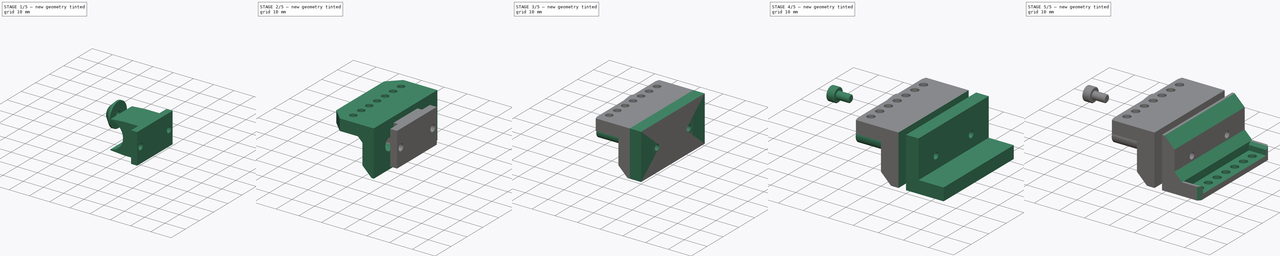
[diagram: build sequence overview — one tinted view per stage of 5, left to right]
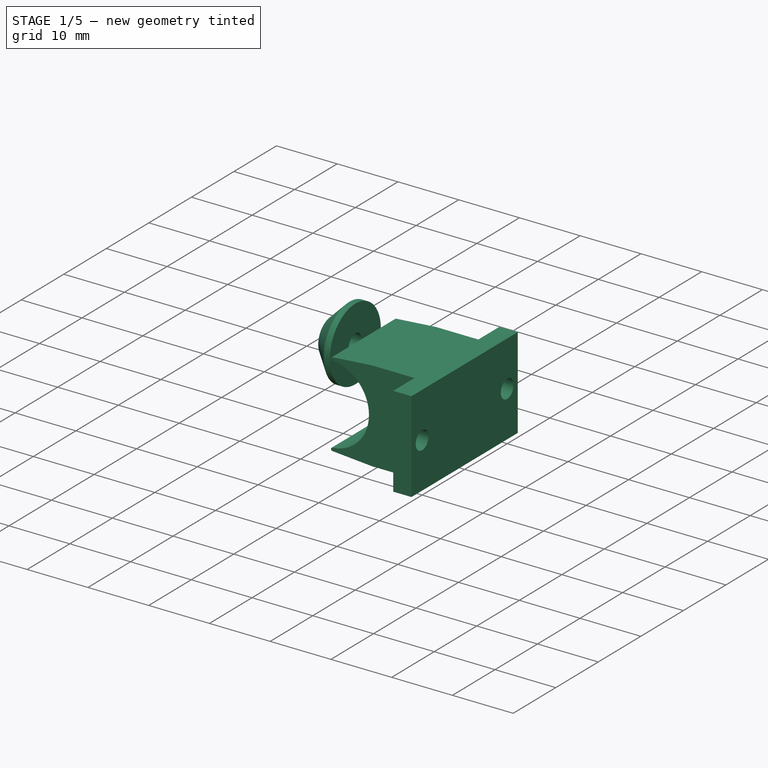
[diagram: stage 1 of 5 — iso view after this stage's code; geometry added in this stage tinted green]
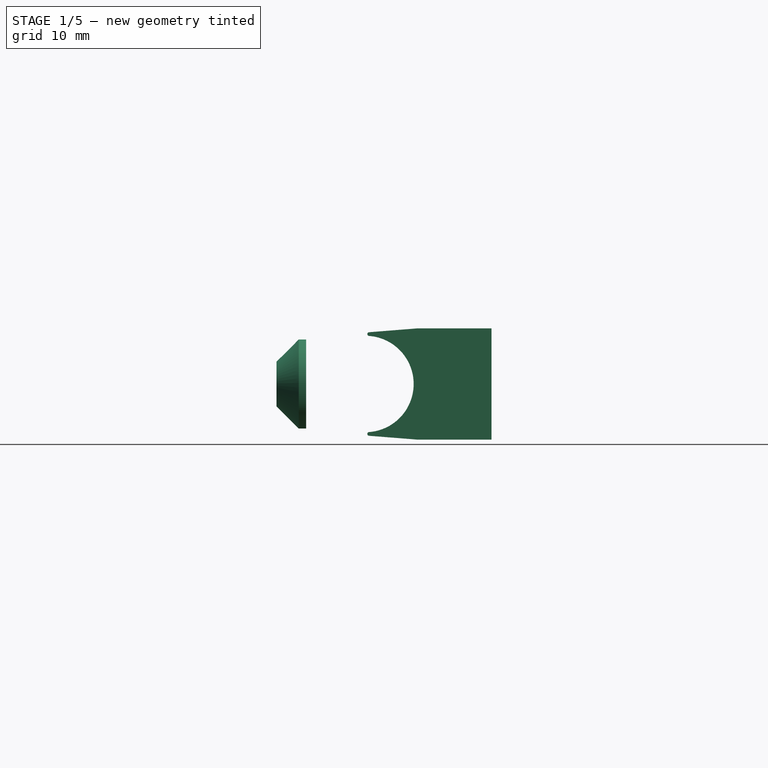
[diagram: stage 1 of 5 — front view after this stage's code; geometry added in this stage tinted green]
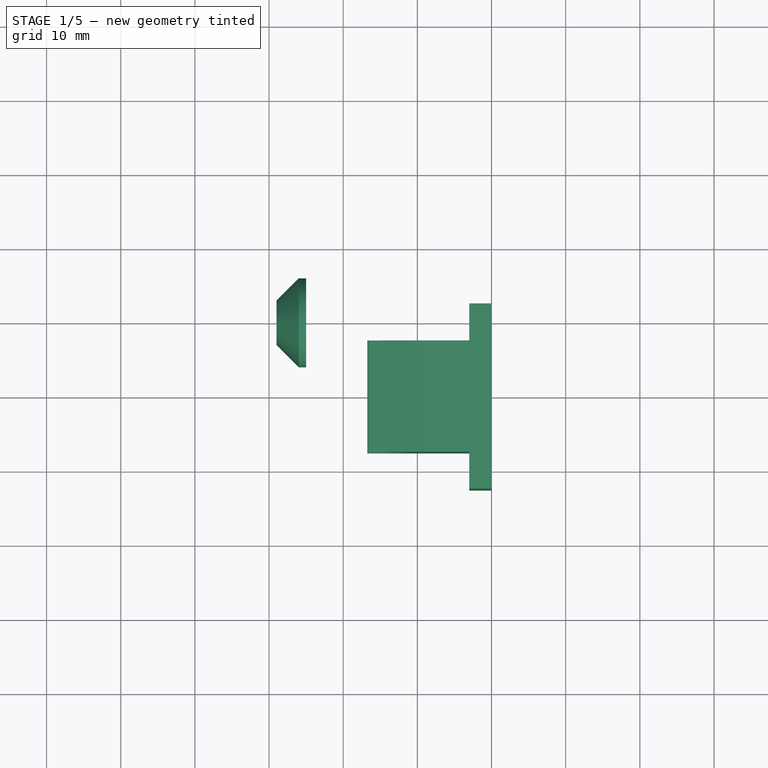
[diagram: stage 1 of 5 — top view after this stage's code; geometry added in this stage tinted green]
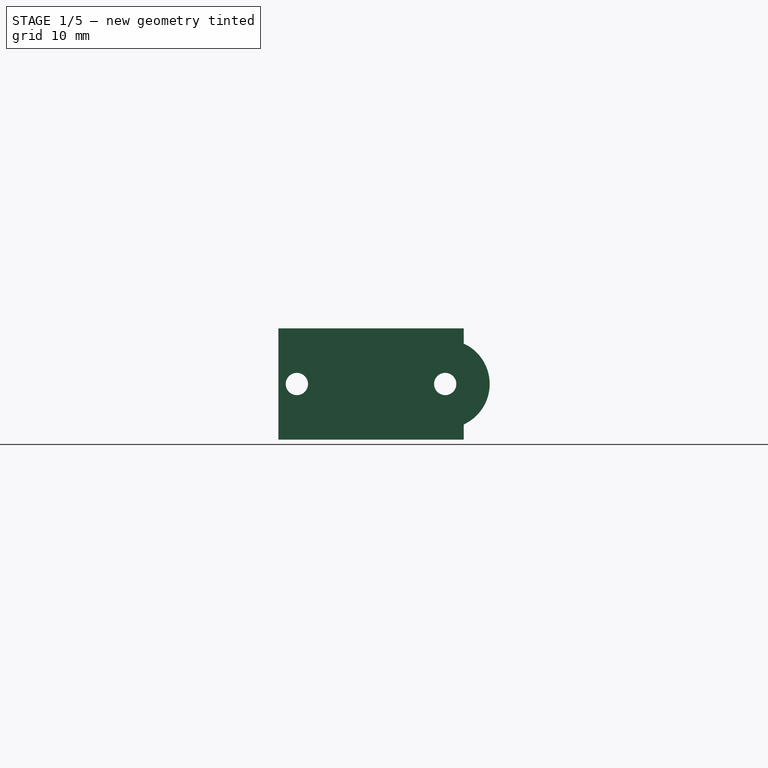
[diagram: stage 1 of 5 — right view after this stage's code; geometry added in this stage tinted green]
FCSTD DOCUMENT  (FreeCAD 1.0R39109 (Git))
Label: Field Probe Clamp
License: All rights reserved
LicenseURL: https://en.wikipedia.org/wiki/All_rights_reserved
objects: Sketcher::SketchObject×21, PartDesign::Pocket×13, PartDesign::Pad×12, PartDesign::Chamfer×8, PartDesign::Body×5, PartDesign::ShapeBinder×4, PartDesign::Plane×4, Part::FeaturePython×1, App::VarSet×1
note: 155 computed .brp shape members not serialized (recipe doc carries the construction recipe); baked Part::Feature solids carry a one-line shape summary decoded from their .brp

FEATURE [PartDesign::ShapeBinder] CopyChamfer002
  Placement = pos=(0,0,0) rot=(1,0,0;1.5708rad)
  TraceSupport = false
FEATURE [PartDesign::Plane] DatumPlane
  AttachmentSupport = -> [CopyChamfer002]
  Length = 60.7238
  MapMode = 5
  Placement = pos=(0,0,0) rot=(0.707107,0,-0.707107;3.14159rad)
  ResizeMode = 0
  Width = 68.2238
FEATURE [Sketcher::SketchObject] Sketch003
  ArcFitTolerance = 1e-06
  AttachmentSupport = -> [DatumPlane]
  ExternalGeometry = -> [CopyChamfer002]
  FullyConstrained = true
  MakeInternals = false
  MapMode = 5
  Placement = pos=(0,0,0) rot=(0.707107,0,-0.707107;3.14159rad)
  sketch-geometry (9):
    g0: Circle CenterX=-10 CenterY=30 CenterZ=0 NormalX=0 NormalY=0 NormalZ=1 AngleXU=0 Radius=1.5
    g1: Circle CenterX=-10 CenterY=10 CenterZ=0 NormalX=0 NormalY=0 NormalZ=1 AngleXU=0 Radius=1.5
    g2: LineSegment [constr] StartX=-10 StartY=30 StartZ=0 EndX=-10 EndY=10 EndZ=0
    g3: GeomPoint [constr] X=-10 Y=20 Z=0
    g4: LineSegment StartX=-12.5 StartY=7.5 StartZ=0 EndX=-7.5 EndY=7.5 EndZ=0
    g5: LineSegment StartX=-7.5 StartY=7.5 StartZ=0 EndX=-7.5 EndY=32.5 EndZ=0
    g6: LineSegment StartX=-7.5 StartY=32.5 StartZ=0 EndX=-12.5 EndY=32.5 EndZ=0
    g7: LineSegment StartX=-12.5 StartY=32.5 StartZ=0 EndX=-12.5 EndY=7.5 EndZ=0
    g8: GeomPoint [constr] X=-10 Y=20 Z=0
  constraints (19):
    c: Diameter(g0) = 3
    c: Coincident(g0,g-4)
    c: Diameter(g1) = 3
    c: Coincident(g1,g-3)
    c: Coincident(g2,g0)
    c: Coincident(g2,g1)
    c: Symmetric(g2,g2,g3)
    c: Coincident(g4,g5)
    c: Coincident(g5,g6)
    c: Coincident(g6,g7)
    c: Coincident(g7,g4)
    c: Horizontal(g4)
    c: Horizontal(g6)
    c: Vertical(g5)
    c: Vertical(g7)
    c: Symmetric(g6,g4,g8)
    c: Distance(g5,g7) = 5
    c: Distance(g4,g6) = 25
    c: Coincident(g8,g3)
FEATURE [PartDesign::Pad] Pad001
  Direction = (-1,0,-2e-16)
  Length = 10
  Length2 = 10
  Placement = pos=(0,0,0) rot=(0.707107,0,-0.707107;3.14159rad)
  Profile = -> Sketch003
  ReferenceAxis = -> Sketch003 [N_Axis]
  Refine = true
  Suppressed = false
  Type = 0
FEATURE [Sketcher::SketchObject] Sketch004
  ArcFitTolerance = 1e-06
  AttachmentSupport = -> [Pad001]
  ExternalGeometry = -> [Pad001]
  FullyConstrained = true
  MakeInternals = false
  MapMode = 5
  Placement = pos=(-10,9e-16,0) rot=(0.707107,0,-0.707107;3.14159rad)
  sketch-geometry (8):
    g0: LineSegment StartX=-12.5 StartY=32.5 StartZ=0 EndX=-12.5 EndY=27.5 EndZ=0
    g1: LineSegment StartX=-12.5 StartY=27.5 StartZ=0 EndX=-7.5 EndY=27.5 EndZ=0
    g2: LineSegment StartX=-7.5 StartY=27.5 StartZ=0 EndX=-7.5 EndY=32.5 EndZ=0
    g3: LineSegment StartX=-7.5 StartY=32.5 StartZ=0 EndX=-12.5 EndY=32.5 EndZ=0
    g4: LineSegment StartX=-12.5 StartY=7.5 StartZ=0 EndX=-7.5 EndY=7.5 EndZ=0
    g5: LineSegment StartX=-7.5 StartY=7.5 StartZ=0 EndX=-7.5 EndY=12.5 EndZ=0
    g6: LineSegment StartX=-7.5 StartY=12.5 StartZ=0 EndX=-12.5 EndY=12.5 EndZ=0
    g7: LineSegment StartX=-12.5 StartY=12.5 StartZ=0 EndX=-12.5 EndY=7.5 EndZ=0
  constraints (22):
    c: Coincident(g0,g1)
    c: Coincident(g1,g2)
    c: Coincident(g2,g3)
    c: Coincident(g3,g0)
    c: Vertical(g0)
    c: Vertical(g2)
    c: Horizontal(g1)
    c: Horizontal(g3)
    c: Distance(g0,g2) = 5
    c: Distance(g1,g3) = 5
    c: Coincident(g0,g-3)
    c: Coincident(g4,g5)
    c: Coincident(g5,g6)
    c: Coincident(g6,g7)
    c: Coincident(g7,g4)
    c: Horizontal(g4)
    c: Horizontal(g6)
    c: Vertical(g5)
    c: Vertical(g7)
    c: Distance(g5,g7) = 5
    c: Distance(g4,g6) = 5
    c: Coincident(g4,g-4)
FEATURE [PartDesign::Pocket] Pocket002
  BaseFeature = -> Pad001
  Direction = (1,0,2e-16)
  Length = 7
  Length2 = 5
  Placement = pos=(0,0,0) rot=(0.707107,0,-0.707107;3.14159rad)
  Profile = -> Sketch004
  ReferenceAxis = -> Sketch004 [N_Axis]
  Refine = true
  Suppressed = false
  Type = 0
FEATURE [PartDesign::ShapeBinder] CopyPocket009
  Placement = pos=(-4.4e-15,0,20) rot=(0.707107,0,-0.707107;3.14159rad)
  TraceSupport = false
FEATURE [PartDesign::Plane] DatumPlane003
  AttachmentSupport = -> [CopyPocket009]
  Length = 60
  MapMode = 5
  Placement = pos=(-25,-2.2e-15,20) rot=(0.707107,0,-0.707107;3.14159rad)
  ResizeMode = 0
  Width = 60
FEATURE [Sketcher::SketchObject] Sketch015
  ArcFitTolerance = 1e-06
  AttachmentSupport = -> [DatumPlane003]
  ExternalGeometry = -> [CopyPocket009]
  FullyConstrained = true
  MakeInternals = false
  MapMode = 5
  Placement = pos=(-25,-2.2e-15,20) rot=(0.707107,0,-0.707107;3.14159rad)
  sketch-geometry (2):
    g0: Circle CenterX=10 CenterY=10 CenterZ=0 NormalX=0 NormalY=0 NormalZ=1 AngleXU=0 Radius=1.55
    g1: Circle CenterX=10 CenterY=10 CenterZ=0 NormalX=0 NormalY=0 NormalZ=1 AngleXU=0 Radius=6
  constraints (4):
    c: Diameter(g0) = 3.1
    c: Coincident(g0,g-4)
    c: Diameter(g1) = 12
    c: Coincident(g1,g0)
FEATURE [PartDesign::Pad] Pad007
  Direction = (-1,0,-2e-16)
  Length = 4
  Length2 = 10
  Placement = pos=(-25,-2.2e-15,20) rot=(0.707107,0,-0.707107;3.14159rad)
  Profile = -> Sketch015
  ReferenceAxis = -> Sketch015 [N_Axis]
  Refine = true
  Suppressed = false
  Type = 0
FEATURE [PartDesign::Chamfer] Chamfer012
  Angle = 45
  Base = -> Pad007 [Edge3]
  BaseFeature = -> Pad007
  ChamferType = 0
  FlipDirection = false
  Placement = pos=(-25,-2.2e-15,20) rot=(0.707107,0,-0.707107;3.14159rad)
  Refine = true
  Size = 3
  Size2 = 1
  SupportTransform = false
  Suppressed = false
  UseAllEdges = false
FEATURE [PartDesign::Body] Body004  label="Spring Retainer"
  AllowCompound = false
  Group = -> [DatumPlane003,CopyPocket009,Sketch015,Pad007,Chamfer012]
  Origin = -> Origin004
  Placement = pos=(-24.5,0,0) rot=(0,0,1;0rad)
  Tip = -> Chamfer012
FEATURE [App::VarSet] VarSet  label="Clamp Screw Variable"
  ClampScrewHoleDia = 2.6
FEATURE [PartDesign::Body] Body003  label="Clamp Body"
  AllowCompound = false
  Group = -> [DatumPlane002,CopyPocket003,Sketch008,Pad004,Sketch009,Pad005,Sketch010,Pocket004,Sketch011,Pocket005,Chamfer007,Chamfer008,Chamfer009,Sketch012,Pocket007,Sketch018,Pocket011,Sketch019,Pocket012,VarSet]
  Origin = -> Origin003
  Placement = pos=(-21,0,0) rot=(0,0,1;0rad)
  Tip = -> Pocket012
FEATURE [PartDesign::Pad] Pad009
  BaseFeature = -> Pocket002
  Direction = (2e-16,2e-16,-1)
  Length = 5
  Length2 = 10
  Placement = pos=(0,0,0) rot=(0.707107,0,-0.707107;3.14159rad)
  Profile = -> Pocket002 [Face3]
  Refine = true
  Suppressed = false
  Type = 0
FEATURE [PartDesign::Pad] Pad010
  BaseFeature = -> Pad009
  Direction = (-2e-16,-3e-16,1)
  Length = 5
  Length2 = 10
  Placement = pos=(0,0,0) rot=(0.707107,0,-0.707107;3.14159rad)
  Profile = -> Pad009 [Face3]
  Refine = true
  Suppressed = false
  Type = 0
FEATURE [Sketcher::SketchObject] Sketch020
  ArcFitTolerance = 1e-06
  AttachmentSupport = -> [Pad010]
  ExternalGeometry = -> [Pad010]
  FullyConstrained = true
  MakeInternals = false
  MapMode = 5
  Placement = pos=(0,-12.5,-5.1e-15) rot=(0.57735,-0.57735,-0.57735;4.18879rad)
  sketch-geometry (10):
    g0: GeomPoint X=-10 Y=10 Z=0
    g1: LineSegment [constr] StartX=-10 StartY=10 StartZ=0 EndX=-10 EndY=17 EndZ=0
    g2: ArcOfCircle CenterX=-10 CenterY=17 CenterZ=0 NormalX=0 NormalY=0 NormalZ=1 AngleXU=0 Radius=6.5 StartAngle=3.21573 EndAngle=6.20904
    g3: LineSegment StartX=-2.5 StartY=10 StartZ=0 EndX=-3.01933 EndY=16.5199 EndZ=0
    g4: LineSegment StartX=-17.5 StartY=10 StartZ=0 EndX=-16.9807 EndY=16.5199 EndZ=0
    g5: LineSegment StartX=-2.5 StartY=10 StartZ=0 EndX=-10 EndY=10 EndZ=0
    g6: LineSegment StartX=-17.5 StartY=10 StartZ=0 EndX=-10 EndY=10 EndZ=0
    g7: ArcOfCircle CenterX=-3.26854 CenterY=16.5 CenterZ=0 NormalX=0 NormalY=0 NormalZ=1 AngleXU=0 Radius=0.25 StartAngle=0.0794864 EndAngle=3.06745
    g8: ArcOfCircle CenterX=-16.7315 CenterY=16.5 CenterZ=0 NormalX=0 NormalY=0 NormalZ=1 AngleXU=0 Radius=0.25 StartAngle=0.074142 EndAngle=3.06211
    g9: GeomPoint X=-10 Y=16.5 Z=0
  constraints (22):
    c: Symmetric(g-3,g-3,g0)
    c: Distance(g1) = 7
    c: Coincident(g1,g0)
    c: Vertical(g1)
    c: Diameter(g2) = 13
    c: Coincident(g2,g1)
    c: Coincident(g3,g-3)
    c: Coincident(g4,g-3)
    c: Coincident(g5,g3)
    c: Coincident(g5,g0)
    c: Coincident(g6,g4)
    c: Coincident(g6,g0)
    c: Tangent(g2,g7) = 1.5708
    c: Tangent(g3,g7) = -1.5708
    c: Tangent(g4,g8) = 1.5708
    c: Tangent(g2,g8) = 1.5708
    c: Distance(g8,g2) = 0.25
    c: PointOnObject(g9,g1)
    c: DistanceY(g9,g1) = 0.5
    c: Horizontal(g8,g9)
    c: Horizontal(g7,g9)
    c: Distance(g7,g2) = 0.25
FEATURE [PartDesign::Pad] Pad011
  BaseFeature = -> Pad010
  Direction = (0,1,0)
  Length = 10
  Length2 = 10
  Placement = pos=(0,0,0) rot=(0.707107,0,-0.707107;3.14159rad)
  Profile = -> Sketch020
  ReferenceAxis = -> Sketch020 [N_Axis]
  Refine = true
  Suppressed = false
  Type = 3
  UpToFace = -> Pad010 [Face9]
FEATURE [PartDesign::Body] Body001  label="Extrusion Lug"
  AllowCompound = false
  Group = -> [DatumPlane,CopyChamfer002,Sketch003,Pad001,Sketch004,Pocket002,Pad009,Pad010,Sketch020,Pad011]
  Origin = -> Origin001
  Tip = -> Pad011
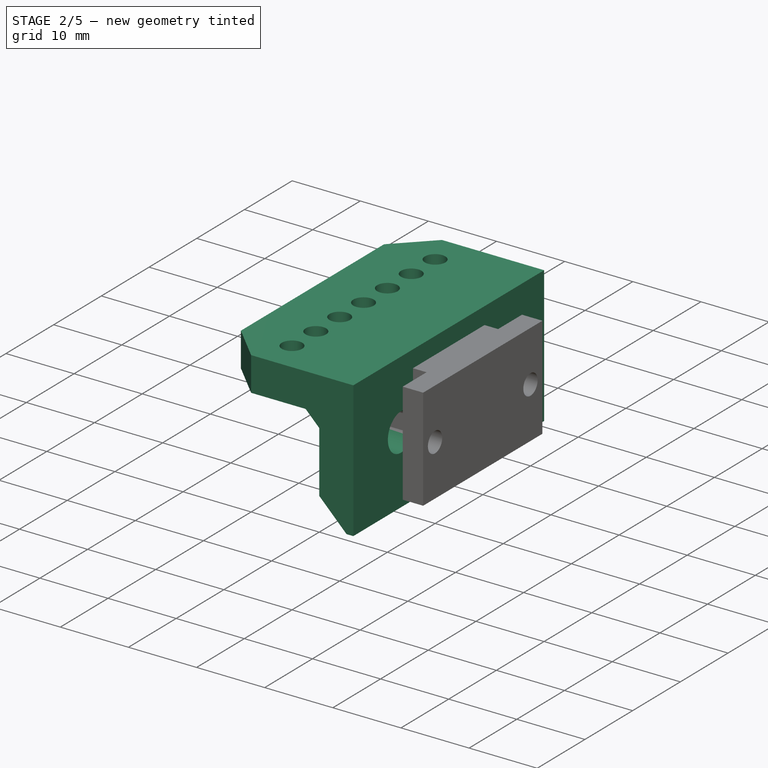
[diagram: stage 2 of 5 — iso view after this stage's code; geometry added in this stage tinted green]
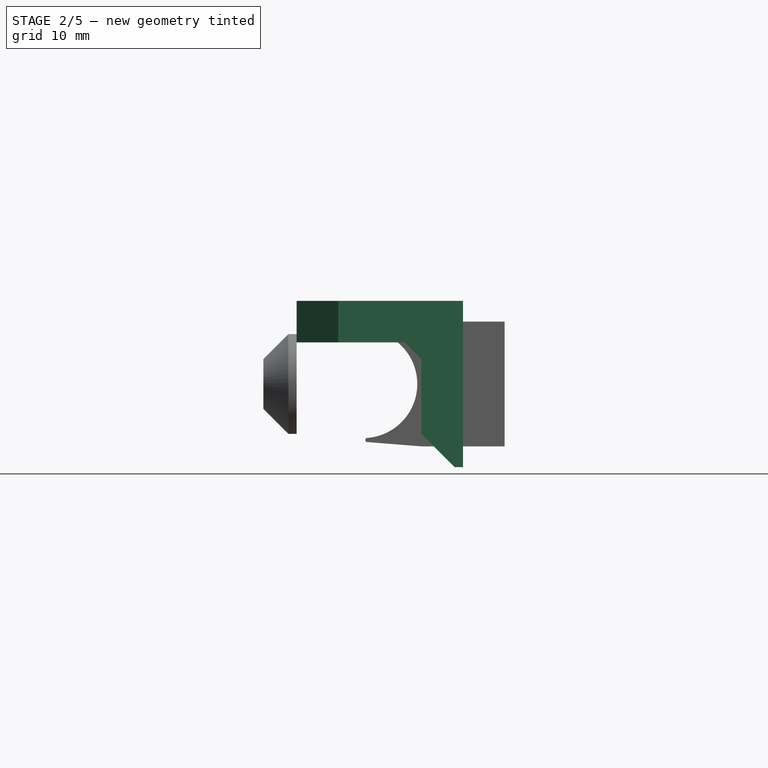
[diagram: stage 2 of 5 — front view after this stage's code; geometry added in this stage tinted green]
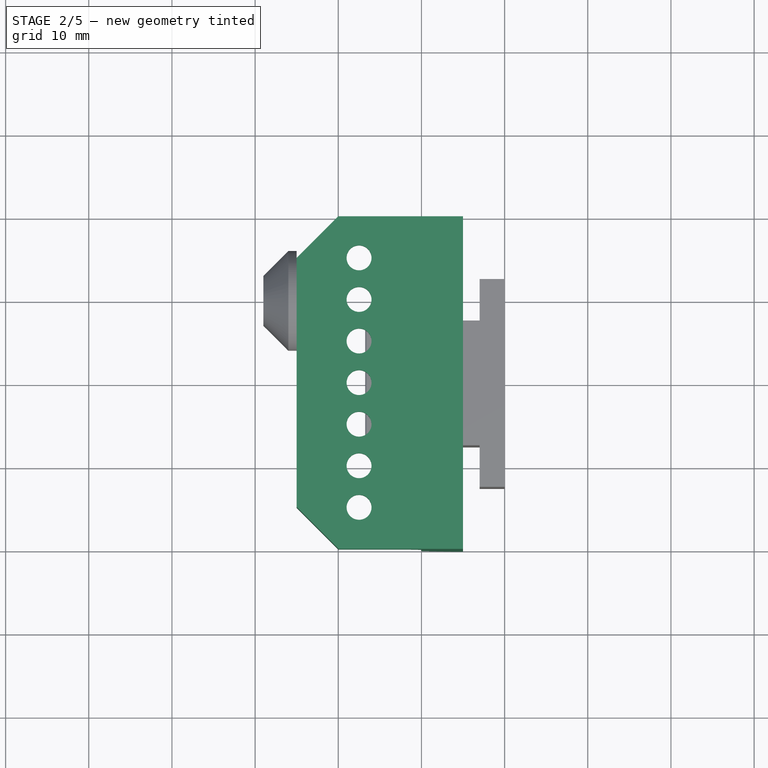
[diagram: stage 2 of 5 — top view after this stage's code; geometry added in this stage tinted green]
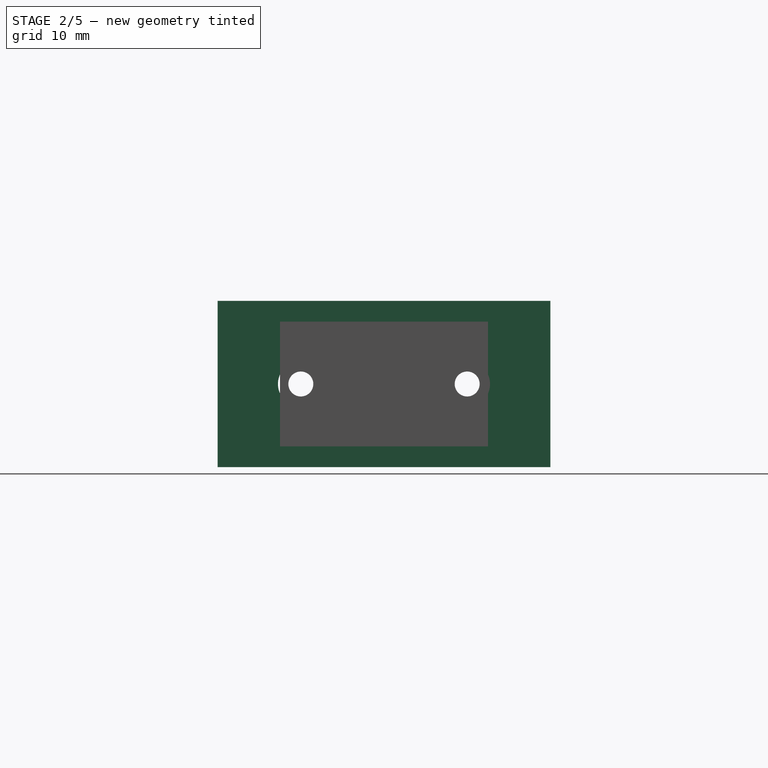
[diagram: stage 2 of 5 — right view after this stage's code; geometry added in this stage tinted green]
FEATURE [PartDesign::ShapeBinder] CopyPocket003
  Placement = pos=(-4.4e-15,0,20) rot=(0.707107,0,-0.707107;3.14159rad)
  TraceSupport = false
FEATURE [PartDesign::Plane] DatumPlane002
  AttachmentSupport = -> [CopyPocket003]
  Length = 61.4018
  MapMode = 5
  Placement = pos=(-5,-4e-16,20) rot=(0.707107,0,-0.707107;3.14159rad)
  ResizeMode = 0
  Width = 76.4018
FEATURE [Sketcher::SketchObject] Sketch008
  ArcFitTolerance = 1e-06
  AttachmentSupport = -> [DatumPlane002]
  ExternalGeometry = -> [CopyPocket003]
  FullyConstrained = true
  MakeInternals = false
  MapMode = 5
  Placement = pos=(-5,-4e-16,20) rot=(0.707107,0,-0.707107;3.14159rad)
  expr: Constraints[14] = <<Clamp Screw Variable>>.ClampScrewHoleDia
  sketch-geometry (7):
    g0: LineSegment StartX=0 StartY=40 StartZ=0 EndX=0 EndY=0 EndZ=0
    g1: LineSegment StartX=0 StartY=0 StartZ=0 EndX=20 EndY=0 EndZ=0
    g2: LineSegment StartX=20 StartY=0 StartZ=0 EndX=20 EndY=40 EndZ=0
    g3: LineSegment StartX=20 StartY=40 StartZ=0 EndX=0 EndY=40 EndZ=0
    g4: Circle CenterX=10 CenterY=30 CenterZ=0 NormalX=0 NormalY=0 NormalZ=1 AngleXU=0 Radius=2.75
    g5: Circle CenterX=10 CenterY=10 CenterZ=0 NormalX=0 NormalY=0 NormalZ=1 AngleXU=0 Radius=2.75
    g6: Circle CenterX=10 CenterY=20 CenterZ=0 NormalX=0 NormalY=0 NormalZ=1 AngleXU=0 Radius=1.3
  constraints (16):
    c: Coincident(g0,g1)
    c: Coincident(g1,g2)
    c: Coincident(g2,g3)
    c: Coincident(g3,g0)
    c: Vertical(g0)
    c: Vertical(g2)
    c: Horizontal(g1)
    c: Horizontal(g3)
    c: Coincident(g0,g-7)
    c: Coincident(g1,g-6)
    c: Diameter(g4) = 5.5
    c: Coincident(g4,g-3)
    c: Diameter(g5) = 5.5
    c: Coincident(g5,g-5)
    c: Diameter(g6) = 2.6
    c: Coincident(g6,g-4)
FEATURE [PartDesign::Pad] Pad004
  Direction = (-1,0,-2e-16)
  Length = 5
  Length2 = 10
  Placement = pos=(-5,-4e-16,20) rot=(0.707107,0,-0.707107;3.14159rad)
  Profile = -> Sketch008
  ReferenceAxis = -> Sketch008 [N_Axis]
  Refine = true
  Suppressed = false
  Type = 0
FEATURE [Sketcher::SketchObject] Sketch009
  ArcFitTolerance = 1e-06
  AttachmentSupport = -> [Pad004]
  ExternalGeometry = -> [Pad004]
  FullyConstrained = true
  MakeInternals = false
  MapMode = 5
  Placement = pos=(-10,-4e-16,20) rot=(0.707107,0,-0.707107;3.14159rad)
  sketch-geometry (4):
    g0: LineSegment StartX=0 StartY=40 StartZ=0 EndX=0 EndY=0 EndZ=0
    g1: LineSegment StartX=0 StartY=0 StartZ=0 EndX=5 EndY=0 EndZ=0
    g2: LineSegment StartX=5 StartY=0 StartZ=0 EndX=5 EndY=40 EndZ=0
    g3: LineSegment StartX=5 StartY=40 StartZ=0 EndX=0 EndY=40 EndZ=0
  constraints (11):
    c: Coincident(g0,g1)
    c: Coincident(g1,g2)
    c: Coincident(g2,g3)
    c: Coincident(g3,g0)
    c: Vertical(g0)
    c: Vertical(g2)
    c: Horizontal(g1)
    c: Horizontal(g3)
    c: Distance(g0,g2) = 5
    c: Coincident(g0,g-3)
    c: PointOnObject(g1,g-4)
FEATURE [PartDesign::Pad] Pad005
  BaseFeature = -> Pad004
  Direction = (-1,0,-2e-16)
  Length = 15
  Length2 = 10
  Placement = pos=(-5,-4e-16,20) rot=(0.707107,0,-0.707107;3.14159rad)
  Profile = -> Sketch009
  ReferenceAxis = -> Sketch009 [N_Axis]
  Refine = true
  Suppressed = false
  Type = 0
FEATURE [Sketcher::SketchObject] Sketch010
  ArcFitTolerance = 1e-06
  AttachmentSupport = -> [Pad005]
  ExternalGeometry = -> [Pad005]
  FullyConstrained = true
  MakeInternals = false
  MapMode = 5
  Placement = pos=(-5,0,15) rot=(0.707107,-0.707107,0;3.14159rad)
  sketch-geometry (15):
    g0: LineSegment [constr] StartX=0 StartY=12.5 StartZ=0 EndX=40 EndY=12.5 EndZ=0
    g1: GeomPoint [constr] X=20 Y=12.5 Z=0
    g2: LineSegment [constr] StartX=20 StartY=12.5 StartZ=0 EndX=25 EndY=12.5 EndZ=0
    g3: LineSegment [constr] StartX=25 StartY=12.5 StartZ=0 EndX=30 EndY=12.5 EndZ=0
    g4: LineSegment [constr] StartX=30 StartY=12.5 StartZ=0 EndX=35 EndY=12.5 EndZ=0
    g5: LineSegment [constr] StartX=20 StartY=12.5 StartZ=0 EndX=15 EndY=12.5 EndZ=0
    g6: LineSegment [constr] StartX=15 StartY=12.5 StartZ=0 EndX=10 EndY=12.5 EndZ=0
    g7: LineSegment [constr] StartX=10 StartY=12.5 StartZ=0 EndX=5 EndY=12.5 EndZ=0
    g8: Circle CenterX=5 CenterY=12.5 CenterZ=0 NormalX=0 NormalY=0 NormalZ=1 AngleXU=0 Radius=1.5
    g9: Circle CenterX=10 CenterY=12.5 CenterZ=0 NormalX=0 NormalY=0 NormalZ=1 AngleXU=0 Radius=1.5
    g10: Circle CenterX=15 CenterY=12.5 CenterZ=0 NormalX=0 NormalY=0 NormalZ=1 AngleXU=0 Radius=1.5
    g11: Circle CenterX=20 CenterY=12.5 CenterZ=0 NormalX=0 NormalY=0 NormalZ=1 AngleXU=0 Radius=1.5
    g12: Circle CenterX=25 CenterY=12.5 CenterZ=0 NormalX=0 NormalY=0 NormalZ=1 AngleXU=0 Radius=1.5
    g13: Circle CenterX=30 CenterY=12.5 CenterZ=0 NormalX=0 NormalY=0 NormalZ=1 AngleXU=0 Radius=1.5
    g14: Circle CenterX=35 CenterY=12.5 CenterZ=0 NormalX=0 NormalY=0 NormalZ=1 AngleXU=0 Radius=1.5
  constraints (35):
    c: Symmetric(g-4,g-4,g0)
    c: Symmetric(g-3,g-3,g0)
    c: Symmetric(g0,g0,g1)
    c: Distance(g2) = 5
    c: Coincident(g2,g1)
    c: PointOnObject(g2,g0)
    c: Distance(g3) = 5
    c: Coincident(g3,g2)
    c: PointOnObject(g3,g0)
    c: Distance(g4) = 5
    c: Coincident(g4,g3)
    c: PointOnObject(g4,g0)
    c: Distance(g5) = 5
    c: Coincident(g5,g1)
    c: PointOnObject(g5,g0)
    c: Distance(g6) = 5
    c: Coincident(g6,g5)
    c: PointOnObject(g6,g0)
    c: Distance(g7) = 5
    c: Coincident(g7,g6)
    c: PointOnObject(g7,g0)
    c: Diameter(g8) = 3
    c: Coincident(g8,g7)
    c: Diameter(g9) = 3
    c: Coincident(g9,g6)
    c: Diameter(g10) = 3
    c: Coincident(g10,g5)
    c: Diameter(g11) = 3
    c: Coincident(g11,g1)
    c: Diameter(g12) = 3
    c: Coincident(g12,g2)
    c: Diameter(g13) = 3
    c: Coincident(g13,g3)
    c: Diameter(g14) = 3
    c: Coincident(g14,g4)
FEATURE [PartDesign::Pocket] Pocket004
  BaseFeature = -> Pad005
  Direction = (0,0,1)
  Length = 5
  Length2 = 5
  Placement = pos=(-5,-4e-16,20) rot=(0.707107,0,-0.707107;3.14159rad)
  Profile = -> Sketch010
  ReferenceAxis = -> Sketch010 [N_Axis]
  Refine = true
  Suppressed = false
  Type = 1
FEATURE [Sketcher::SketchObject] Sketch011
  ArcFitTolerance = 1e-06
  AttachmentSupport = -> [Pocket004]
  ExternalGeometry = -> [Pocket004]
  FullyConstrained = true
  MakeInternals = false
  MapMode = 5
  Placement = pos=(-5,0,15) rot=(0.707107,-0.707107,0;3.14159rad)
  sketch-geometry (5):
    g0: LineSegment StartX=1.5 StartY=9.5 StartZ=0 EndX=38.5 EndY=9.5 EndZ=0
    g1: LineSegment StartX=38.5 StartY=9.5 StartZ=0 EndX=38.5 EndY=15.5 EndZ=0
    g2: LineSegment StartX=38.5 StartY=15.5 StartZ=0 EndX=1.5 EndY=15.5 EndZ=0
    g3: LineSegment StartX=1.5 StartY=15.5 StartZ=0 EndX=1.5 EndY=9.5 EndZ=0
    g4: GeomPoint [constr] X=20 Y=12.5 Z=0
  constraints (12):
    c: Coincident(g0,g1)
    c: Coincident(g1,g2)
    c: Coincident(g2,g3)
    c: Coincident(g3,g0)
    c: Horizontal(g0)
    c: Horizontal(g2)
    c: Vertical(g1)
    c: Vertical(g3)
    c: Symmetric(g2,g0,g4)
    c: Distance(g1,g3) = 37
    c: Distance(g0,g2) = 6
    c: Coincident(g4,g-3)
FEATURE [PartDesign::Pocket] Pocket005
  BaseFeature = -> Pocket004
  Direction = (0,0,1)
  Length = 3
  Length2 = 5
  Placement = pos=(-5,-4e-16,20) rot=(0.707107,0,-0.707107;3.14159rad)
  Profile = -> Sketch011
  ReferenceAxis = -> Sketch011 [N_Axis]
  Refine = true
  Suppressed = false
  Type = 0
FEATURE [PartDesign::Chamfer] Chamfer007
  Angle = 45
  Base = -> Pocket005 [Edge48]
  BaseFeature = -> Pocket005
  ChamferType = 0
  FlipDirection = false
  Placement = pos=(-5,-4e-16,20) rot=(0.707107,0,-0.707107;3.14159rad)
  Refine = true
  Size = 2
  Size2 = 1
  SupportTransform = false
  Suppressed = false
  UseAllEdges = false
FEATURE [PartDesign::Chamfer] Chamfer008
  Angle = 45
  Base = -> Chamfer007 [Edge9]
  BaseFeature = -> Chamfer007
  ChamferType = 0
  FlipDirection = false
  Placement = pos=(-5,-4e-16,20) rot=(0.707107,0,-0.707107;3.14159rad)
  Refine = true
  Size = 4
  Size2 = 1
  SupportTransform = false
  Suppressed = false
  UseAllEdges = false
FEATURE [PartDesign::Chamfer] Chamfer009
  Angle = 45
  Base = -> Chamfer008 [Edge7,Edge33]
  BaseFeature = -> Chamfer008
  ChamferType = 0
  FlipDirection = false
  Placement = pos=(-5,-4e-16,20) rot=(0.707107,0,-0.707107;3.14159rad)
  Refine = true
  Size = 5
  Size2 = 1
  SupportTransform = false
  Suppressed = false
  UseAllEdges = false
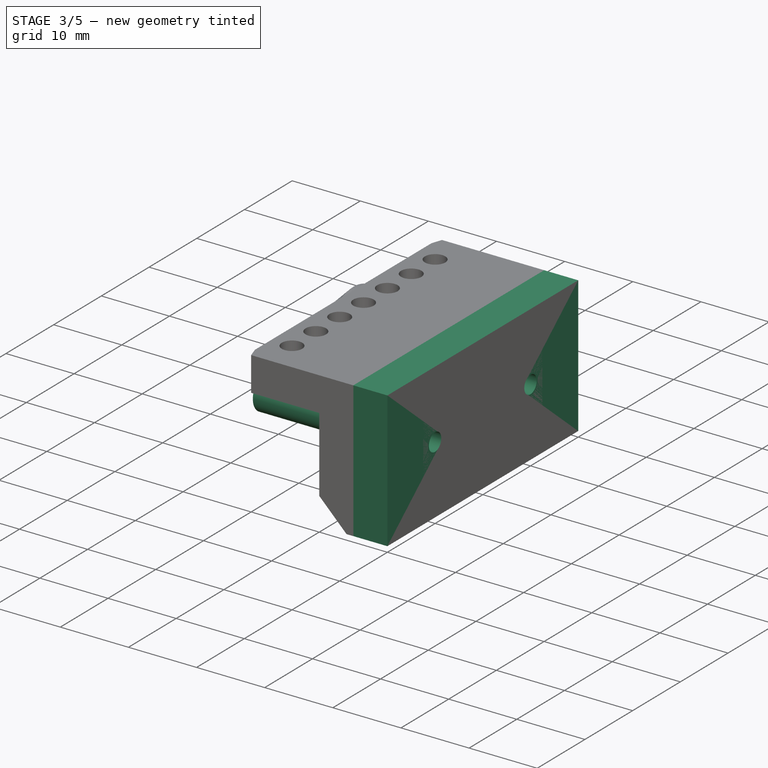
[diagram: stage 3 of 5 — iso view after this stage's code; geometry added in this stage tinted green]
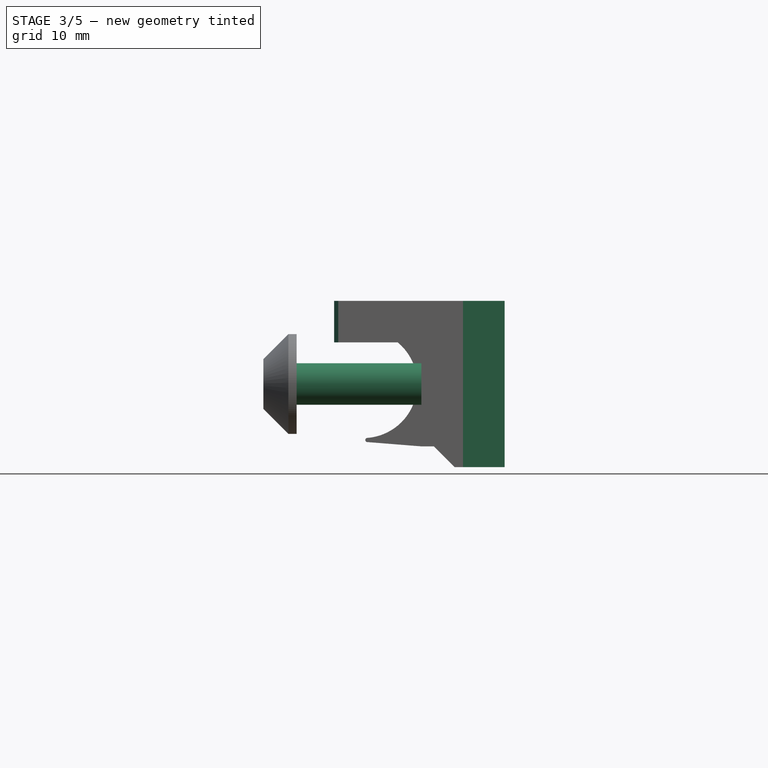
[diagram: stage 3 of 5 — front view after this stage's code; geometry added in this stage tinted green]
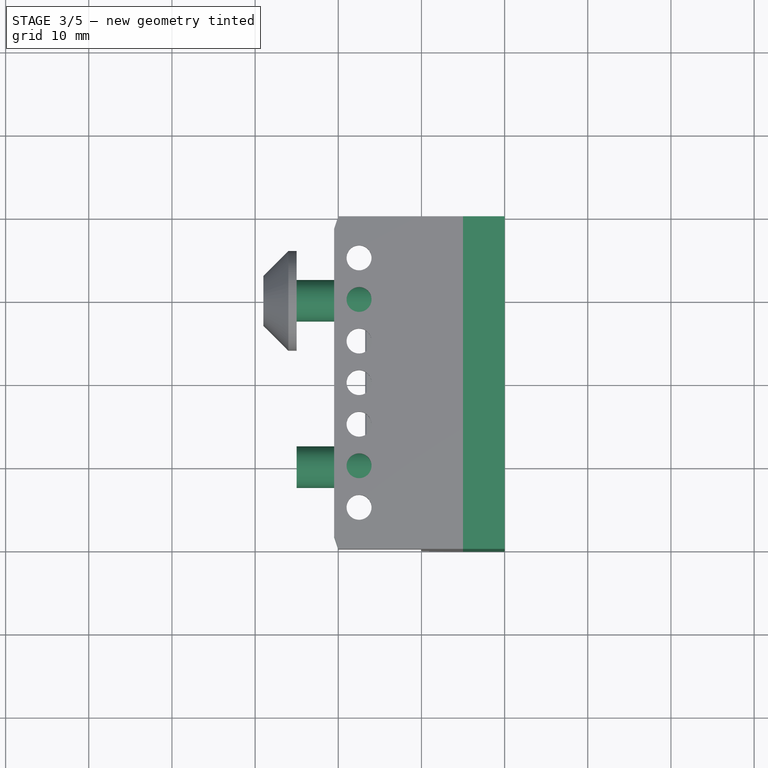
[diagram: stage 3 of 5 — top view after this stage's code; geometry added in this stage tinted green]
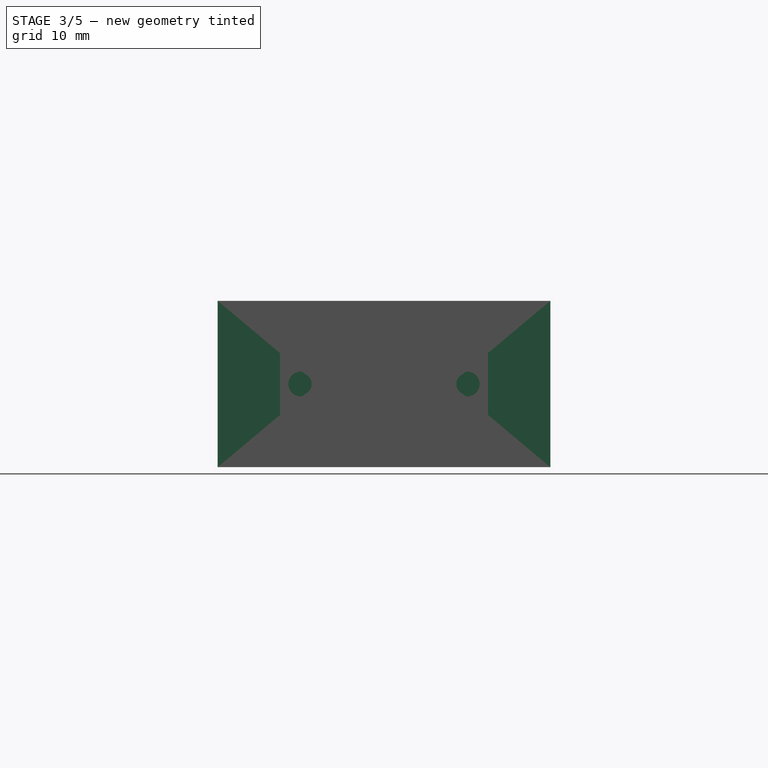
[diagram: stage 3 of 5 — right view after this stage's code; geometry added in this stage tinted green]
FEATURE [PartDesign::ShapeBinder] CopyChamfer003
  Placement = pos=(0,0,0) rot=(1,0,0;1.5708rad)
  TraceSupport = false
FEATURE [PartDesign::Plane] DatumPlane001
  AttachmentOffset = pos=(-20,0,0) rot=(0,0,1;0rad)
  AttachmentSupport = -> [CopyChamfer003]
  Length = 61.4018
  MapMode = 5
  Placement = pos=(-4.4e-15,0,20) rot=(0.707107,0,-0.707107;3.14159rad)
  ResizeMode = 0
  Width = 76.4018
FEATURE [Sketcher::SketchObject] Sketch005
  ArcFitTolerance = 1e-06
  AttachmentSupport = -> [DatumPlane001]
  ExternalGeometry = -> [CopyChamfer003]
  FullyConstrained = true
  MakeInternals = false
  MapMode = 5
  Placement = pos=(-4.4e-15,0,20) rot=(0.707107,0,-0.707107;3.14159rad)
  sketch-geometry (6):
    g0: LineSegment StartX=0 StartY=40 StartZ=0 EndX=0 EndY=0 EndZ=0
    g1: LineSegment StartX=0 StartY=0 StartZ=0 EndX=20 EndY=0 EndZ=0
    g2: LineSegment StartX=20 StartY=0 StartZ=0 EndX=20 EndY=40 EndZ=0
    g3: LineSegment StartX=20 StartY=40 StartZ=0 EndX=0 EndY=40 EndZ=0
    g4: Circle CenterX=10 CenterY=30 CenterZ=0 NormalX=0 NormalY=0 NormalZ=1 AngleXU=0 Radius=1.3
    g5: Circle CenterX=10 CenterY=10 CenterZ=0 NormalX=0 NormalY=0 NormalZ=1 AngleXU=0 Radius=1.3
  constraints (14):
    c: Coincident(g0,g1)
    c: Coincident(g1,g2)
    c: Coincident(g2,g3)
    c: Coincident(g3,g0)
    c: Vertical(g0)
    c: Vertical(g2)
    c: Horizontal(g1)
    c: Horizontal(g3)
    c: Coincident(g0,g-7)
    c: Coincident(g1,g-8)
    c: Coincident(g4,g-4)
    c: Equal(g4,g-4)
    c: Coincident(g5,g-5)
    c: Equal(g5,g-5)
FEATURE [PartDesign::Pad] Pad002
  Direction = (-1,0,-2e-16)
  Length = 5
  Length2 = 10
  Placement = pos=(-4.4e-15,0,20) rot=(0.707107,0,-0.707107;3.14159rad)
  Profile = -> Sketch005
  ReferenceAxis = -> Sketch005 [N_Axis]
  Refine = true
  Suppressed = false
  Type = 0
FEATURE [Sketcher::SketchObject] Sketch006
  ArcFitTolerance = 1e-06
  AttachmentSupport = -> [Pad002]
  ExternalGeometry = -> [Pad002]
  FullyConstrained = true
  MakeInternals = false
  MapMode = 5
  Placement = pos=(-5,0,20) rot=(0.707107,0,-0.707107;3.14159rad)
  sketch-geometry (2):
    g0: Circle CenterX=10 CenterY=30 CenterZ=0 NormalX=0 NormalY=0 NormalZ=1 AngleXU=0 Radius=2.5
    g1: Circle CenterX=10 CenterY=10 CenterZ=0 NormalX=0 NormalY=0 NormalZ=1 AngleXU=0 Radius=2.5
  constraints (4):
    c: Diameter(g0) = 5
    c: Coincident(g0,g-3)
    c: Diameter(g1) = 5
    c: Coincident(g1,g-4)
FEATURE [PartDesign::Pad] Pad003
  BaseFeature = -> Pad002
  Direction = (-1,0,-2e-16)
  Length = 20
  Length2 = 10
  Placement = pos=(-4.4e-15,0,20) rot=(0.707107,0,-0.707107;3.14159rad)
  Profile = -> Sketch006
  ReferenceAxis = -> Sketch006 [N_Axis]
  Refine = true
  Suppressed = false
  Type = 0
FEATURE [Sketcher::SketchObject] Sketch007
  ArcFitTolerance = 1e-06
  FullyConstrained = true
  MakeInternals = false
  MapMode = 5
  Placement = pos=(-5,0,20) rot=(0.707107,0,-0.707107;3.14159rad)
  sketch-geometry (3):
    g0: LineSegment [constr] StartX=20 StartY=20 StartZ=0 EndX=0 EndY=20 EndZ=0
    g1: GeomPoint [constr] X=10 Y=20 Z=0
    g2: Circle CenterX=10 CenterY=20 CenterZ=0 NormalX=0 NormalY=0 NormalZ=1 AngleXU=0 Radius=1.6
  constraints (5):
    c: Symmetric(g-3,g-3,g0)
    c: Symmetric(g-4,g-4,g0)
    c: Symmetric(g0,g0,g1)
    c: Diameter(g2) = 3.2
    c: Coincident(g2,g1)
FEATURE [PartDesign::Pocket] Pocket003
  BaseFeature = -> Pad003
  Direction = (1,0,2e-16)
  Length = 0.5
  Length2 = 5
  Placement = pos=(-4.4e-15,0,20) rot=(0.707107,0,-0.707107;3.14159rad)
  Profile = -> Sketch007
  ReferenceAxis = -> Sketch007 [N_Axis]
  Refine = true
  Suppressed = false
  Type = 0
FEATURE [Sketcher::SketchObject] Sketch012
  ArcFitTolerance = 1e-06
  AttachmentSupport = -> [Chamfer009]
  ExternalGeometry = -> [Chamfer009]
  FullyConstrained = false
  MakeInternals = false
  MapMode = 5
  Placement = pos=(-5,0,15) rot=(0.707107,-0.707107,0;3.14159rad)
  sketch-geometry (6):
    g0: LineSegment StartX=0 StartY=15 StartZ=0 EndX=5 EndY=20 EndZ=0
    g1: LineSegment StartX=5 StartY=20 StartZ=0 EndX=35 EndY=20 EndZ=0
    g2: LineSegment StartX=35 StartY=20 StartZ=0 EndX=40 EndY=15 EndZ=0
    g3: LineSegment StartX=38.5 StartY=15.5 StartZ=0 EndX=1.5 EndY=15.5 EndZ=0
    g4: LineSegment StartX=40 StartY=15 StartZ=0 EndX=38.5 EndY=15.5 EndZ=0
    g5: LineSegment StartX=0 StartY=15 StartZ=0 EndX=1.5 EndY=15.5 EndZ=0
  constraints (9):
    c: Coincident(g0,g-8)
    c: Coincident(g1,g0)
    c: Coincident(g1,g-10)
    c: Coincident(g2,g1)
    c: Coincident(g2,g-10)
    c: Coincident(g4,g2)
    c: Coincident(g4,g3)
    c: Coincident(g5,g0)
    c: Coincident(g5,g3)
FEATURE [PartDesign::Pocket] Pocket007
  BaseFeature = -> Chamfer009
  Direction = (0,0,1)
  Length = 5
  Length2 = 5
  Placement = pos=(-5,-4e-16,20) rot=(0.707107,0,-0.707107;3.14159rad)
  Profile = -> Sketch012
  ReferenceAxis = -> Sketch012 [N_Axis]
  Refine = true
  Suppressed = false
  Type = 0
FEATURE [PartDesign::Body] Body002  label="Clamp Face"
  AllowCompound = false
  Group = -> [DatumPlane001,CopyChamfer003,Sketch005,Pad002,Sketch006,Pad003,Sketch007,Pocket003,Pocket006,Sketch014,Pocket009,Sketch016,Pad008,Sketch017,Pocket010]
  Origin = -> Origin002
  Placement = pos=(-20,0,0) rot=(0,0,1;0rad)
  Tip = -> Pocket010
FEATURE [Sketcher::SketchObject] Sketch018
  ArcFitTolerance = 1e-06
  AttachmentSupport = -> [Pocket007]
  ExternalGeometry = -> [Pocket007]
  FullyConstrained = true
  MakeInternals = false
  MapMode = 5
  Placement = pos=(-10,-4e-16,20) rot=(0.707107,0,-0.707107;3.14159rad)
  sketch-geometry (2):
    g0: Circle CenterX=10 CenterY=30 CenterZ=0 NormalX=0 NormalY=0 NormalZ=1 AngleXU=0 Radius=3.25
    g1: Circle CenterX=10 CenterY=10 CenterZ=0 NormalX=0 NormalY=0 NormalZ=1 AngleXU=0 Radius=3.25
  constraints (4):
    c: Diameter(g0) = 6.5
    c: Coincident(g0,g-3)
    c: Diameter(g1) = 6.5
    c: Coincident(g1,g-4)
FEATURE [PartDesign::Pocket] Pocket011
  BaseFeature = -> Pocket007
  Direction = (1,0,2e-16)
  Length = 7
  Length2 = 5
  Placement = pos=(-5,-4e-16,20) rot=(0.707107,0,-0.707107;3.14159rad)
  Profile = -> Sketch018
  ReferenceAxis = -> Sketch018 [N_Axis]
  Refine = true
  Suppressed = false
  Type = 0
FEATURE [Sketcher::SketchObject] Sketch019
  ArcFitTolerance = 1e-06
  AttachmentSupport = -> [Pocket011]
  ExternalGeometry = -> [Pocket011]
  FullyConstrained = true
  MakeInternals = false
  MapMode = 5
  Placement = pos=(-5,2.1e-15,20) rot=(0.57735,-0.57735,-0.57735;4.18879rad)
  sketch-geometry (4):
    g0: LineSegment StartX=5 StartY=7 StartZ=0 EndX=5 EndY=5 EndZ=0
    g1: LineSegment StartX=5 StartY=5 StartZ=0 EndX=7 EndY=5 EndZ=0
    g2: LineSegment StartX=7 StartY=5 StartZ=0 EndX=7 EndY=7 EndZ=0
    g3: LineSegment StartX=7 StartY=7 StartZ=0 EndX=5 EndY=7 EndZ=0
  constraints (10):
    c: Coincident(g0,g1)
    c: Coincident(g1,g2)
    c: Coincident(g2,g3)
    c: Coincident(g3,g0)
    c: Vertical(g0)
    c: Vertical(g2)
    c: Horizontal(g1)
    c: Horizontal(g3)
    c: Coincident(g0,g-3)
    c: Coincident(g1,g-3)
FEATURE [PartDesign::Pocket] Pocket012
  BaseFeature = -> Pocket011
  Direction = (0,-1,0)
  Length = 5
  Length2 = 5
  Placement = pos=(-5,-4e-16,20) rot=(0.707107,0,-0.707107;3.14159rad)
  Profile = -> Sketch019
  ReferenceAxis = -> Sketch019 [N_Axis]
  Refine = true
  Suppressed = false
  Type = 1
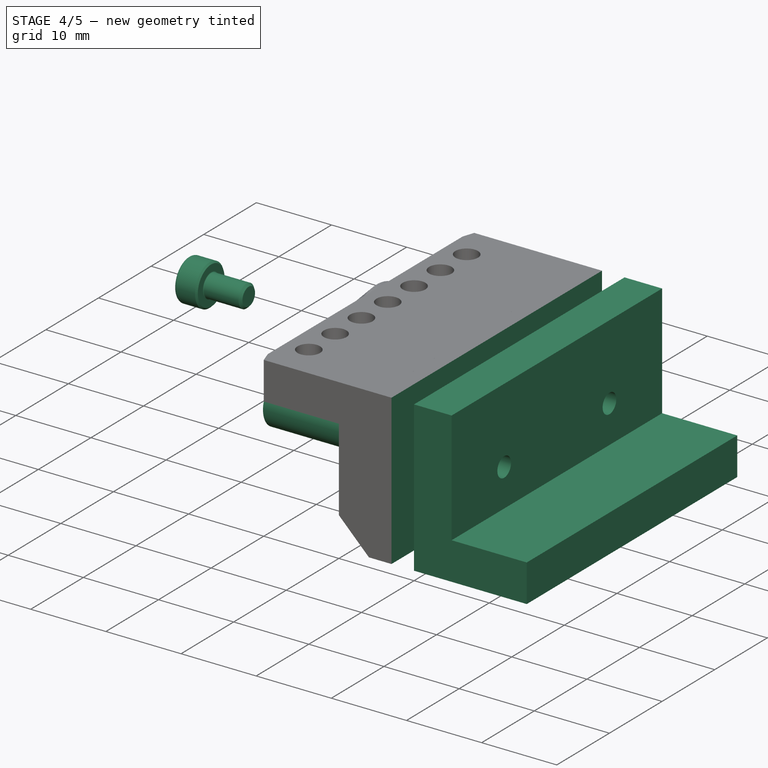
[diagram: stage 4 of 5 — iso view after this stage's code; geometry added in this stage tinted green]
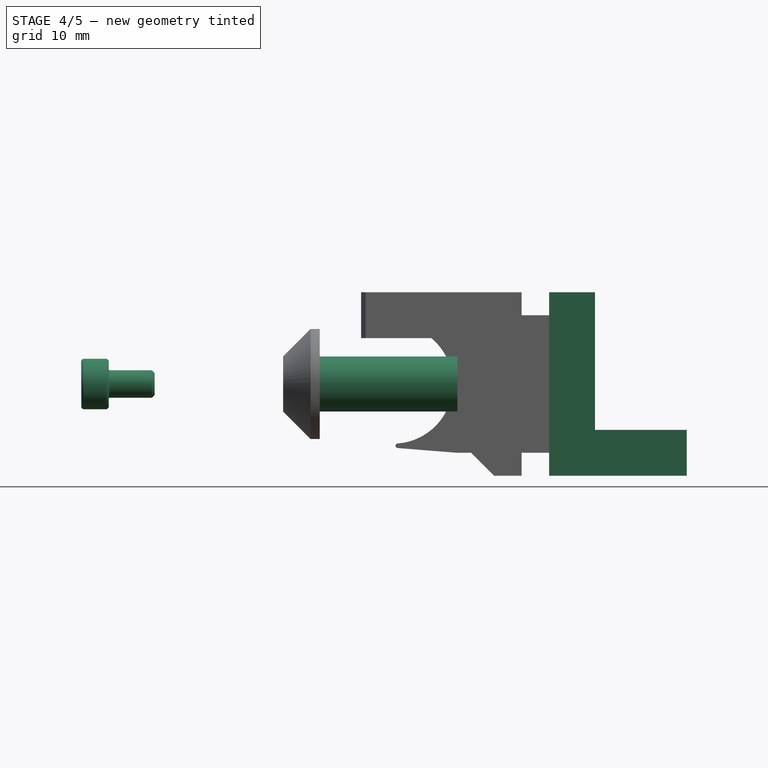
[diagram: stage 4 of 5 — front view after this stage's code; geometry added in this stage tinted green]
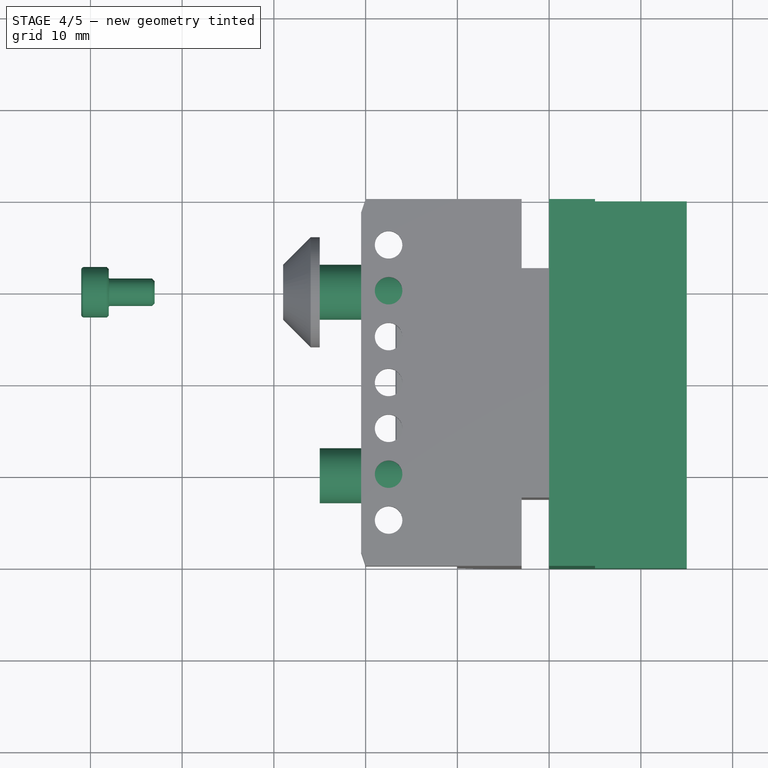
[diagram: stage 4 of 5 — top view after this stage's code; geometry added in this stage tinted green]
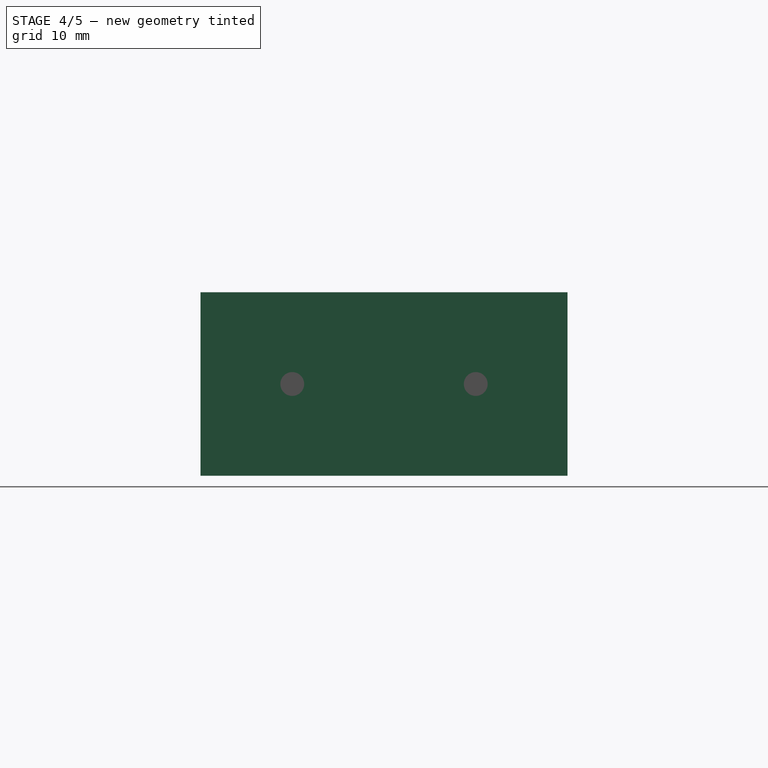
[diagram: stage 4 of 5 — right view after this stage's code; geometry added in this stage tinted green]
FEATURE [Sketcher::SketchObject] Sketch
  ArcFitTolerance = 1e-06
  AttachmentSupport = -> [XZ_Plane]
  FullyConstrained = true
  MakeInternals = false
  MapMode = 5
  Placement = pos=(0,0,0) rot=(1,0,0;1.5708rad)
  sketch-geometry (6):
    g0: LineSegment StartX=0 StartY=0 StartZ=0 EndX=0 EndY=20 EndZ=0
    g1: LineSegment StartX=0 StartY=20 StartZ=0 EndX=5 EndY=20 EndZ=0
    g2: LineSegment StartX=5 StartY=20 StartZ=0 EndX=5 EndY=5 EndZ=0
    g3: LineSegment StartX=0 StartY=0 StartZ=0 EndX=15 EndY=0 EndZ=0
    g4: LineSegment StartX=5 StartY=5 StartZ=0 EndX=15 EndY=5 EndZ=0
    g5: LineSegment StartX=15 StartY=5 StartZ=0 EndX=15 EndY=0 EndZ=0
  constraints (17):
    c: Distance(g0) = 20
    c: Coincident(g0,g-1)
    c: PointOnObject(g0,g-2)
    c: Distance(g1) = 5
    c: Coincident(g1,g0)
    c: Horizontal(g1)
    c: Distance(g2) = 15
    c: Coincident(g2,g1)
    c: Vertical(g2)
    c: Distance(g3) = 15
    c: Coincident(g3,g0)
    c: PointOnObject(g3,g-1)
    c: Distance(g4) = 10
    c: Coincident(g4,g2)
    c: Horizontal(g4)
    c: Coincident(g5,g4)
    c: Coincident(g5,g3)
FEATURE [PartDesign::Pad] Pad
  Direction = (0,-1,2e-16)
  Length = 40
  Length2 = 10
  Placement = pos=(0,0,0) rot=(1,0,0;1.5708rad)
  Profile = -> Sketch
  ReferenceAxis = -> Sketch [N_Axis]
  Refine = true
  Suppressed = false
  Type = 0
FEATURE [Sketcher::SketchObject] Sketch001
  ArcFitTolerance = 1e-06
  AttachmentSupport = -> [Pad]
  ExternalGeometry = -> [Pad]
  FullyConstrained = true
  MakeInternals = false
  MapMode = 5
  Placement = pos=(0,0,0) rot=(0.707107,0,-0.707107;3.14159rad)
  sketch-geometry (6):
    g0: LineSegment [constr] StartX=-10 StartY=40 StartZ=0 EndX=-10 EndY=0 EndZ=0
    g1: GeomPoint [constr] X=-10 Y=20 Z=0
    g2: LineSegment [constr] StartX=-10 StartY=20 StartZ=0 EndX=-10 EndY=30 EndZ=0
    g3: LineSegment [constr] StartX=-10 StartY=20 StartZ=0 EndX=-10 EndY=10 EndZ=0
    g4: Circle CenterX=-10 CenterY=30 CenterZ=0 NormalX=0 NormalY=0 NormalZ=1 AngleXU=0 Radius=1.3
    g5: Circle CenterX=-10 CenterY=10 CenterZ=0 NormalX=0 NormalY=0 NormalZ=1 AngleXU=0 Radius=1.3
  constraints (13):
    c: Symmetric(g-3,g-3,g0)
    c: Symmetric(g-4,g-4,g0)
    c: Symmetric(g0,g0,g1)
    c: Distance(g2) = 10
    c: Coincident(g2,g1)
    c: PointOnObject(g2,g0)
    c: Distance(g3) = 10
    c: Coincident(g3,g1)
    c: PointOnObject(g3,g0)
    c: Diameter(g4) = 2.6
    c: Coincident(g4,g2)
    c: Diameter(g5) = 2.6
    c: Coincident(g5,g3)
FEATURE [PartDesign::Pocket] Pocket
  BaseFeature = -> Pad
  Direction = (1,0,2e-16)
  Length = 5
  Length2 = 5
  Placement = pos=(0,0,0) rot=(1,0,0;1.5708rad)
  Profile = -> Sketch001
  ReferenceAxis = -> Sketch001 [N_Axis]
  Refine = true
  Suppressed = false
  Type = 0
FEATURE [PartDesign::Pocket] Pocket006
  BaseFeature = -> Pocket003
  Direction = (-1,0,0)
  Length = 3
  Length2 = 5
  Placement = pos=(-4.4e-15,0,20) rot=(0.707107,0,-0.707107;3.14159rad)
  Profile = -> Pocket003 [Face4]
  Refine = true
  Suppressed = false
  Type = 0
FEATURE [PartDesign::Body] Body  label="Clamp Back Plate"
  AllowCompound = false
  Group = -> [Sketch,Pad,Sketch001,Pocket,Chamfer,Chamfer001,Sketch002,Pocket001,Pocket008,Sketch013,Pad006,Chamfer010,Chamfer011]
  Origin = -> Origin
  Tip = -> Chamfer011
FEATURE [Sketcher::SketchObject] Sketch014
  ArcFitTolerance = 1e-06
  AttachmentSupport = -> [Pocket006]
  ExternalGeometry = -> [Pocket006]
  FullyConstrained = true
  MakeInternals = false
  MapMode = 5
  Placement = pos=(-25,0,20) rot=(0.707107,0,-0.707107;3.14159rad)
  sketch-geometry (2):
    g0: Circle CenterX=10 CenterY=10 CenterZ=0 NormalX=0 NormalY=0 NormalZ=1 AngleXU=0 Radius=1.3
    g1: Circle CenterX=10 CenterY=30 CenterZ=0 NormalX=0 NormalY=0 NormalZ=1 AngleXU=0 Radius=1.3
  constraints (4):
    c: Diameter(g0) = 2.6
    c: Coincident(g0,g-4)
    c: Diameter(g1) = 2.6
    c: Coincident(g1,g-3)
FEATURE [PartDesign::Pocket] Pocket009
  BaseFeature = -> Pocket006
  Direction = (1,0,2e-16)
  Length = 5
  Length2 = 5
  Placement = pos=(-4.4e-15,0,20) rot=(0.707107,0,-0.707107;3.14159rad)
  Profile = -> Sketch014
  ReferenceAxis = -> Sketch014 [N_Axis]
  Refine = true
  Suppressed = false
  Type = 0
FEATURE [Part::FeaturePython] Screw  label="M3x5-Screw"  # WARN: FeaturePython — macro-defined, semantics opaque (R4)
  Diameter = 3
  Invert = false
  LeftHanded = false
  Length = 0
  LengthCustom = 5
  MatchOuter = false
  OffsetAngle = 0
  Placement = pos=(-48,-10,10) rot=(0,1,0;-1.5708rad)
  Thread = false
  Type = 52
FEATURE [Sketcher::SketchObject] Sketch016
  ArcFitTolerance = 1e-06
  AttachmentSupport = -> [Pocket009]
  ExternalGeometry = -> [Pocket009]
  FullyConstrained = true
  MakeInternals = false
  MapMode = 5
  Placement = pos=(-25,0,20) rot=(0.707107,0,-0.707107;3.14159rad)
  sketch-geometry (4):
    g0: Circle CenterX=10 CenterY=30 CenterZ=0 NormalX=0 NormalY=0 NormalZ=1 AngleXU=0 Radius=2.5
    g1: Circle CenterX=10 CenterY=30 CenterZ=0 NormalX=0 NormalY=0 NormalZ=1 AngleXU=0 Radius=3
    g2: Circle CenterX=10 CenterY=10 CenterZ=0 NormalX=0 NormalY=0 NormalZ=1 AngleXU=0 Radius=2.5
    g3: Circle CenterX=10 CenterY=10 CenterZ=0 NormalX=0 NormalY=0 NormalZ=1 AngleXU=0 Radius=3
  constraints (8):
    c: Coincident(g0,g-3)
    c: Equal(g0,g-3)
    c: Diameter(g1) = 6
    c: Coincident(g1,g0)
    c: Coincident(g2,g-4)
    c: Equal(g2,g-4)
    c: Diameter(g3) = 6
    c: Coincident(g3,g2)
FEATURE [PartDesign::Pad] Pad008
  BaseFeature = -> Pocket009
  Direction = (-1,0,-2e-16)
  Length = 20
  Length2 = 10
  Placement = pos=(-4.4e-15,0,20) rot=(0.707107,0,-0.707107;3.14159rad)
  Profile = -> Sketch016
  ReferenceAxis = -> Sketch016 [N_Axis]
  Refine = true
  Reversed = true
  Suppressed = false
  Type = 0
FEATURE [Sketcher::SketchObject] Sketch017
  ArcFitTolerance = 1e-06
  AttachmentSupport = -> [Pad008]
  ExternalGeometry = -> [Pad008]
  FullyConstrained = true
  MakeInternals = false
  MapMode = 5
  Placement = pos=(-25,0,20) rot=(0.707107,0,-0.707107;3.14159rad)
  sketch-geometry (2):
    g0: Circle CenterX=10 CenterY=30 CenterZ=0 NormalX=0 NormalY=0 NormalZ=1 AngleXU=0 Radius=1.375
    g1: Circle CenterX=10 CenterY=10 CenterZ=0 NormalX=0 NormalY=0 NormalZ=1 AngleXU=0 Radius=1.375
  constraints (4):
    c: Coincident(g0,g-3)
    c: Coincident(g1,g-4)
    c: Diameter(g0) = 2.75
    c: Diameter(g1) = 2.75
FEATURE [PartDesign::Pocket] Pocket010
  BaseFeature = -> Pad008
  Direction = (1,0,2e-16)
  Length = 5
  Length2 = 5
  Placement = pos=(-4.4e-15,0,20) rot=(0.707107,0,-0.707107;3.14159rad)
  Profile = -> Sketch017
  ReferenceAxis = -> Sketch017 [N_Axis]
  Refine = true
  Suppressed = false
  Type = 0
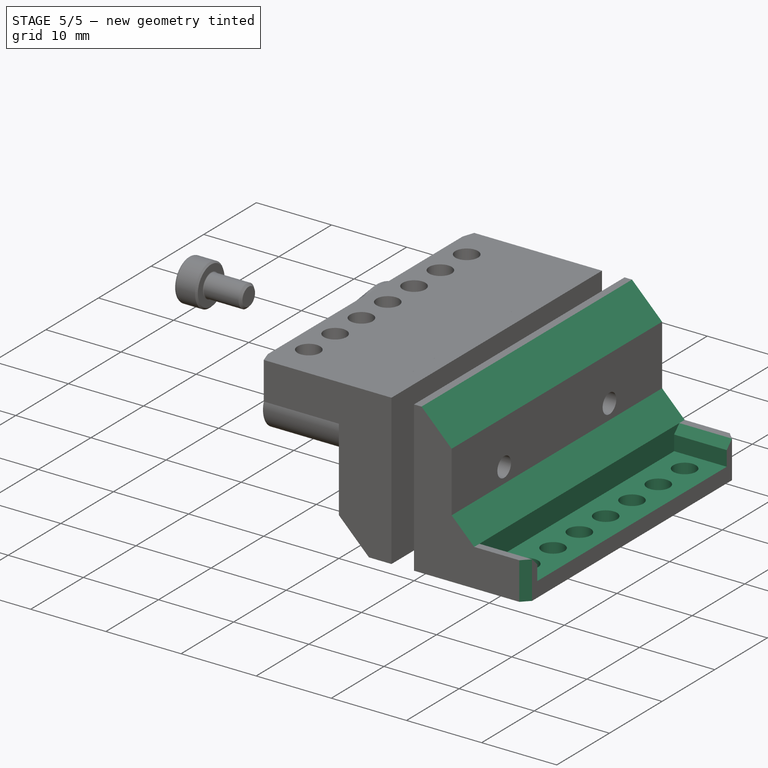
[diagram: stage 5 of 5 — iso view after this stage's code; geometry added in this stage tinted green]
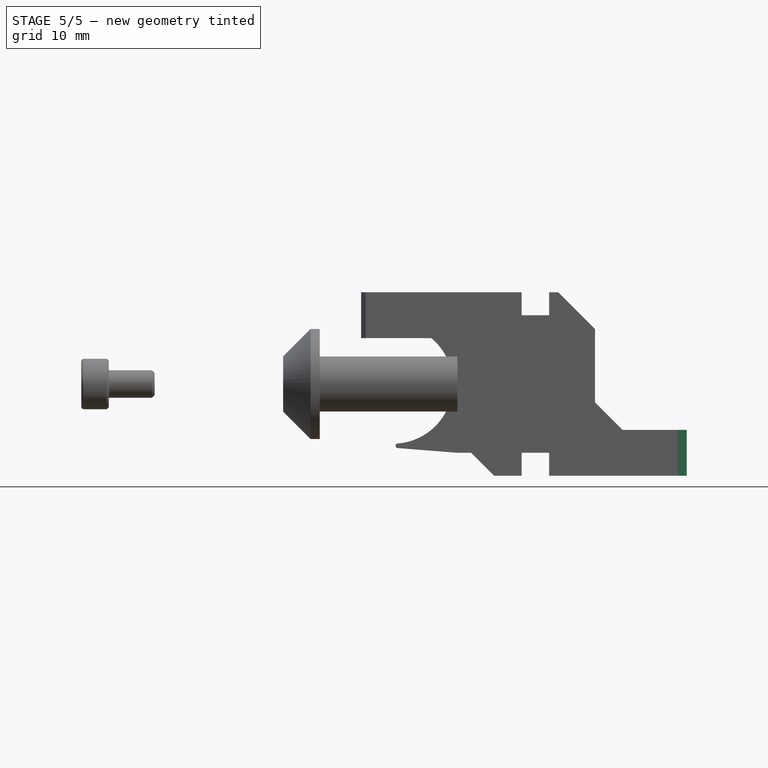
[diagram: stage 5 of 5 — front view after this stage's code; geometry added in this stage tinted green]
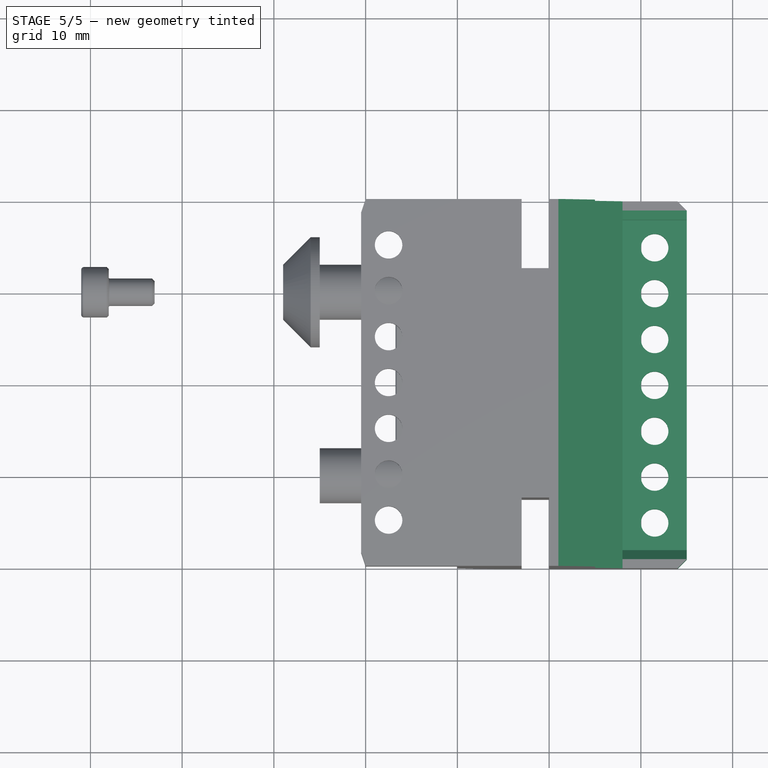
[diagram: stage 5 of 5 — top view after this stage's code; geometry added in this stage tinted green]
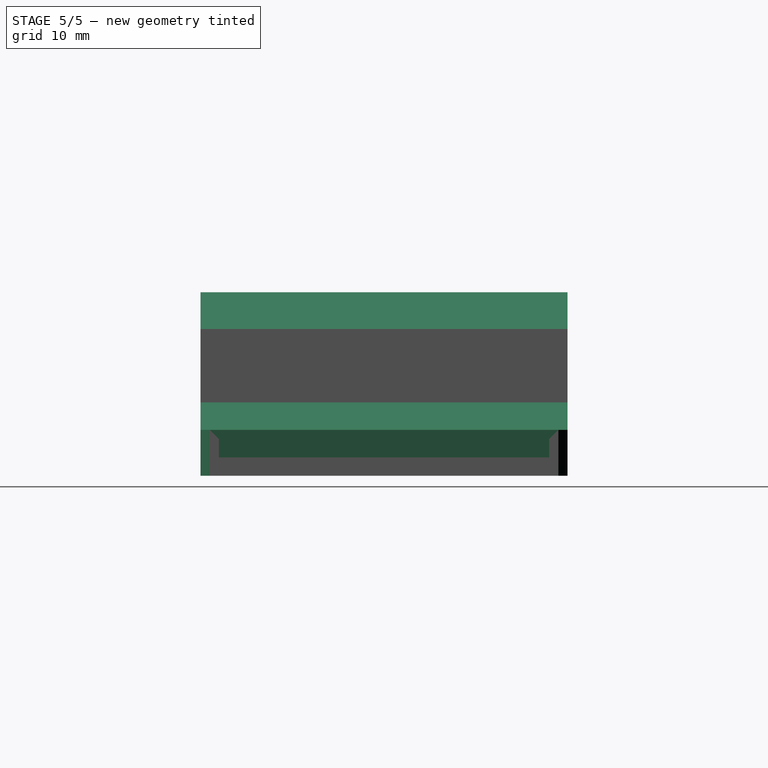
[diagram: stage 5 of 5 — right view after this stage's code; geometry added in this stage tinted green]
FEATURE [PartDesign::Chamfer] Chamfer
  Angle = 45
  Base = -> Pocket [Edge24]
  BaseFeature = -> Pocket
  ChamferType = 0
  FlipDirection = false
  Placement = pos=(0,0,0) rot=(1,0,0;1.5708rad)
  Refine = true
  Size = 3
  Size2 = 1
  SupportTransform = false
  Suppressed = false
  UseAllEdges = false
FEATURE [PartDesign::Chamfer] Chamfer001
  Angle = 45
  Base = -> Chamfer [Edge9]
  BaseFeature = -> Chamfer
  ChamferType = 0
  FlipDirection = false
  Placement = pos=(0,0,0) rot=(1,0,0;1.5708rad)
  Refine = true
  Size = 4
  Size2 = 1
  SupportTransform = false
  Suppressed = false
  UseAllEdges = false
FEATURE [Sketcher::SketchObject] Sketch002
  ArcFitTolerance = 1e-06
  AttachmentSupport = -> [Chamfer001]
  ExternalGeometry = -> [Chamfer001]
  FullyConstrained = true
  MakeInternals = false
  MapMode = 5
  Placement = pos=(0,2.2e-15,5) rot=(0,0,1;3.14159rad)
  sketch-geometry (15):
    g0: LineSegment [constr] StartX=-11.5 StartY=40 StartZ=0 EndX=-11.5 EndY=0 EndZ=0
    g1: GeomPoint [constr] X=-11.5 Y=20 Z=0
    g2: LineSegment [constr] StartX=-11.5 StartY=20 StartZ=0 EndX=-11.5 EndY=25 EndZ=0
    g3: LineSegment [constr] StartX=-11.5 StartY=25 StartZ=0 EndX=-11.5 EndY=30 EndZ=0
    g4: LineSegment [constr] StartX=-11.5 StartY=20 StartZ=0 EndX=-11.5 EndY=15 EndZ=0
    g5: LineSegment [constr] StartX=-11.5 StartY=15 StartZ=0 EndX=-11.5 EndY=10 EndZ=0
    g6: LineSegment [constr] StartX=-11.5 StartY=10 StartZ=0 EndX=-11.5 EndY=5 EndZ=0
    g7: LineSegment [constr] StartX=-11.5 StartY=30 StartZ=0 EndX=-11.5 EndY=35 EndZ=0
    g8: Circle CenterX=-11.5 CenterY=35 CenterZ=0 NormalX=0 NormalY=0 NormalZ=1 AngleXU=0 Radius=1.5
    g9: Circle CenterX=-11.5 CenterY=30 CenterZ=0 NormalX=0 NormalY=0 NormalZ=1 AngleXU=0 Radius=1.5
    g10: Circle CenterX=-11.5 CenterY=25 CenterZ=0 NormalX=0 NormalY=0 NormalZ=1 AngleXU=0 Radius=1.5
    g11: Circle CenterX=-11.5 CenterY=20 CenterZ=0 NormalX=0 NormalY=0 NormalZ=1 AngleXU=0 Radius=1.5
    g12: Circle CenterX=-11.5 CenterY=15 CenterZ=0 NormalX=0 NormalY=0 NormalZ=1 AngleXU=0 Radius=1.5
    g13: Circle CenterX=-11.5 CenterY=10 CenterZ=0 NormalX=0 NormalY=0 NormalZ=1 AngleXU=0 Radius=1.5
    g14: Circle CenterX=-11.5 CenterY=5 CenterZ=0 NormalX=0 NormalY=0 NormalZ=1 AngleXU=0 Radius=1.5
  constraints (35):
    c: Symmetric(g-3,g-3,g0)
    c: Symmetric(g-4,g-4,g0)
    c: Symmetric(g0,g0,g1)
    c: Distance(g2) = 5
    c: Coincident(g2,g1)
    c: PointOnObject(g2,g0)
    c: Distance(g3) = 5
    c: Coincident(g3,g2)
    c: PointOnObject(g3,g0)
    c: Distance(g4) = 5
    c: Coincident(g4,g1)
    c: PointOnObject(g4,g0)
    c: Distance(g5) = 5
    c: Coincident(g5,g4)
    c: PointOnObject(g5,g0)
    c: Distance(g6) = 5
    c: Coincident(g6,g5)
    c: PointOnObject(g6,g0)
    c: Distance(g7) = 5
    c: Coincident(g7,g3)
    c: PointOnObject(g7,g0)
    c: Diameter(g8) = 3
    c: Coincident(g8,g7)
    c: Diameter(g9) = 3
    c: Coincident(g9,g3)
    c: Diameter(g10) = 3
    c: Coincident(g10,g2)
    c: Diameter(g11) = 3
    c: Coincident(g11,g1)
    c: Diameter(g12) = 3
    c: Coincident(g12,g4)
    c: Diameter(g13) = 3
    c: Coincident(g13,g5)
    c: Diameter(g14) = 3
    c: Coincident(g14,g6)
FEATURE [PartDesign::Pocket] Pocket001
  BaseFeature = -> Chamfer001
  Direction = (0,0,-1)
  Length = 5
  Length2 = 5
  Placement = pos=(0,0,0) rot=(1,0,0;1.5708rad)
  Profile = -> Sketch002
  ReferenceAxis = -> Sketch002 [N_Axis]
  Refine = true
  Suppressed = false
  Type = 1
FEATURE [PartDesign::Pocket] Pocket008
  BaseFeature = -> Pocket001
  Direction = (0,-4e-16,-1)
  Length = 3
  Length2 = 5
  Placement = pos=(0,0,0) rot=(1,0,0;1.5708rad)
  Profile = -> Pocket001 [Face6]
  Refine = true
  Suppressed = false
  Type = 0
FEATURE [Sketcher::SketchObject] Sketch013
  ArcFitTolerance = 1e-06
  AttachmentSupport = -> [Pocket008]
  ExternalGeometry = -> [Pocket008]
  FullyConstrained = true
  MakeInternals = false
  MapMode = 5
  Placement = pos=(0,9e-16,2) rot=(0,0,1;3.14159rad)
  sketch-geometry (8):
    g0: LineSegment StartX=-15 StartY=40 StartZ=0 EndX=-15 EndY=38 EndZ=0
    g1: LineSegment StartX=-15 StartY=38 StartZ=0 EndX=-8 EndY=38 EndZ=0
    g2: LineSegment StartX=-8 StartY=38 StartZ=0 EndX=-8 EndY=40 EndZ=0
    g3: LineSegment StartX=-8 StartY=40 StartZ=0 EndX=-15 EndY=40 EndZ=0
    g4: LineSegment StartX=-15 StartY=0 StartZ=0 EndX=-8 EndY=0 EndZ=0
    g5: LineSegment StartX=-8 StartY=0 StartZ=0 EndX=-8 EndY=2 EndZ=0
    g6: LineSegment StartX=-8 StartY=2 StartZ=0 EndX=-15 EndY=2 EndZ=0
    g7: LineSegment StartX=-15 StartY=2 StartZ=0 EndX=-15 EndY=0 EndZ=0
  constraints (22):
    c: Coincident(g0,g1)
    c: Coincident(g1,g2)
    c: Coincident(g2,g3)
    c: Coincident(g3,g0)
    c: Vertical(g0)
    c: Vertical(g2)
    c: Horizontal(g1)
    c: Horizontal(g3)
    c: Distance(g1,g3) = 2
    c: Coincident(g0,g-3)
    c: PointOnObject(g1,g-5)
    c: Coincident(g4,g5)
    c: Coincident(g5,g6)
    c: Coincident(g6,g7)
    c: Coincident(g7,g4)
    c: Horizontal(g4)
    c: Horizontal(g6)
    c: Vertical(g5)
    c: Vertical(g7)
    c: Distance(g4,g6) = 2
    c: Coincident(g4,g-4)
    c: PointOnObject(g5,g-5)
FEATURE [PartDesign::Pad] Pad006
  BaseFeature = -> Pocket008
  Direction = (0,0,1)
  Length = 3
  Length2 = 10
  Placement = pos=(0,0,0) rot=(1,0,0;1.5708rad)
  Profile = -> Sketch013
  ReferenceAxis = -> Sketch013 [N_Axis]
  Refine = true
  Suppressed = false
  Type = 0
FEATURE [PartDesign::Chamfer] Chamfer010
  Angle = 45
  Base = -> Pad006 [Edge64,Edge63]
  BaseFeature = -> Pad006
  ChamferType = 0
  FlipDirection = false
  Placement = pos=(0,0,0) rot=(1,0,0;1.5708rad)
  Refine = true
  Size = 1
  Size2 = 1
  SupportTransform = false
  Suppressed = false
  UseAllEdges = false
FEATURE [PartDesign::Chamfer] Chamfer011
  Angle = 45
  Base = -> Chamfer010 [Edge55,Edge70]
  BaseFeature = -> Chamfer010
  ChamferType = 0
  FlipDirection = false
  Placement = pos=(0,0,0) rot=(1,0,0;1.5708rad)
  Refine = true
  Size = 1
  Size2 = 1
  SupportTransform = false
  Suppressed = false
  UseAllEdges = false
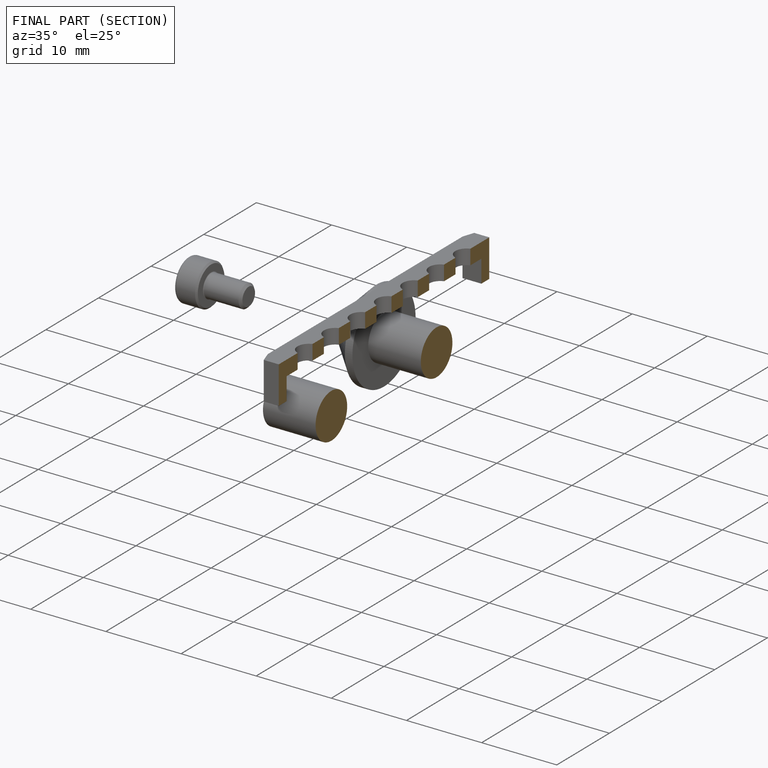
[diagram: finished part — half-section view (interior)]
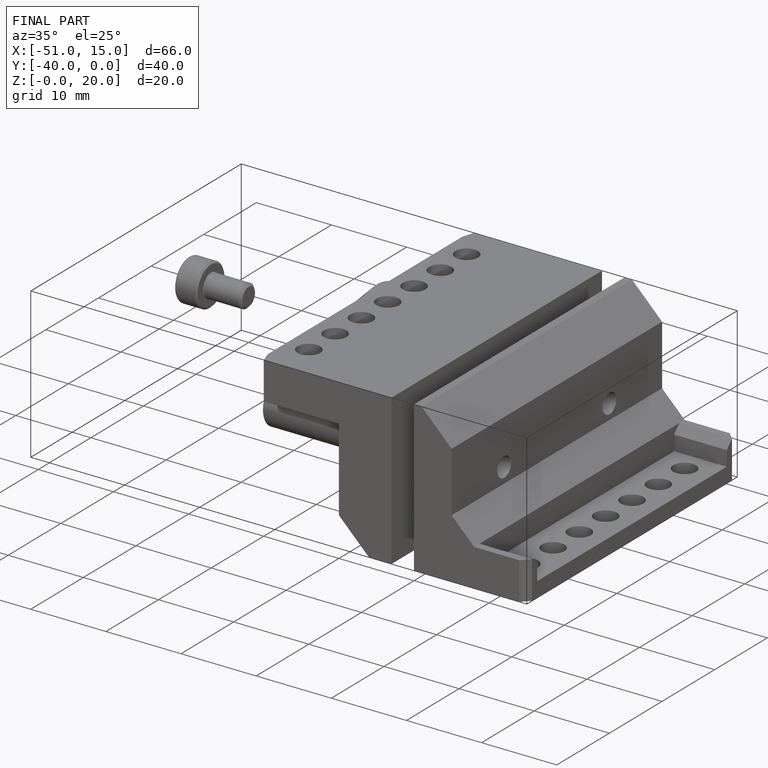
[diagram: finished part — iso view with bounding-box wireframe]
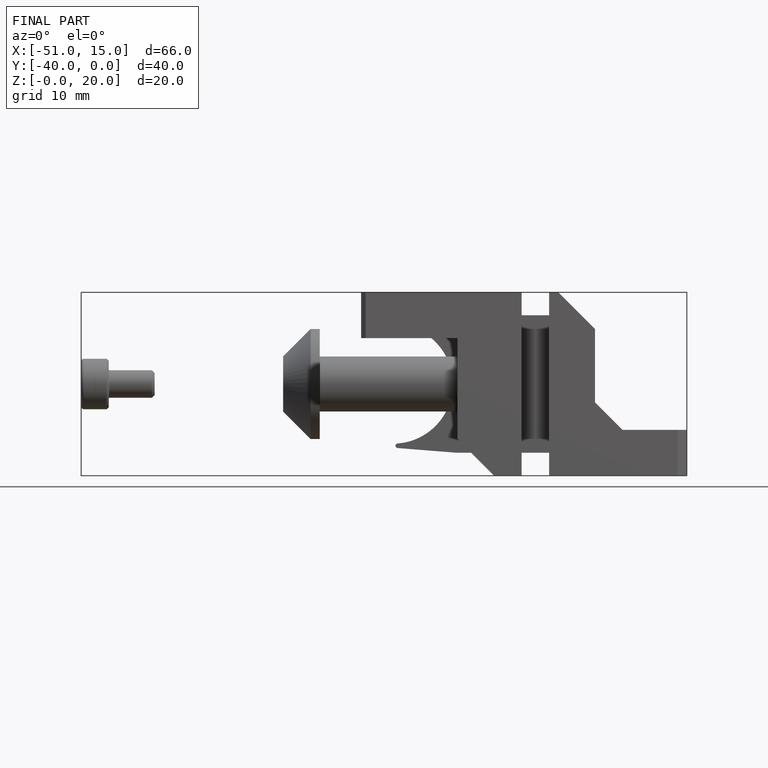
[diagram: finished part — front view with bounding-box wireframe]
